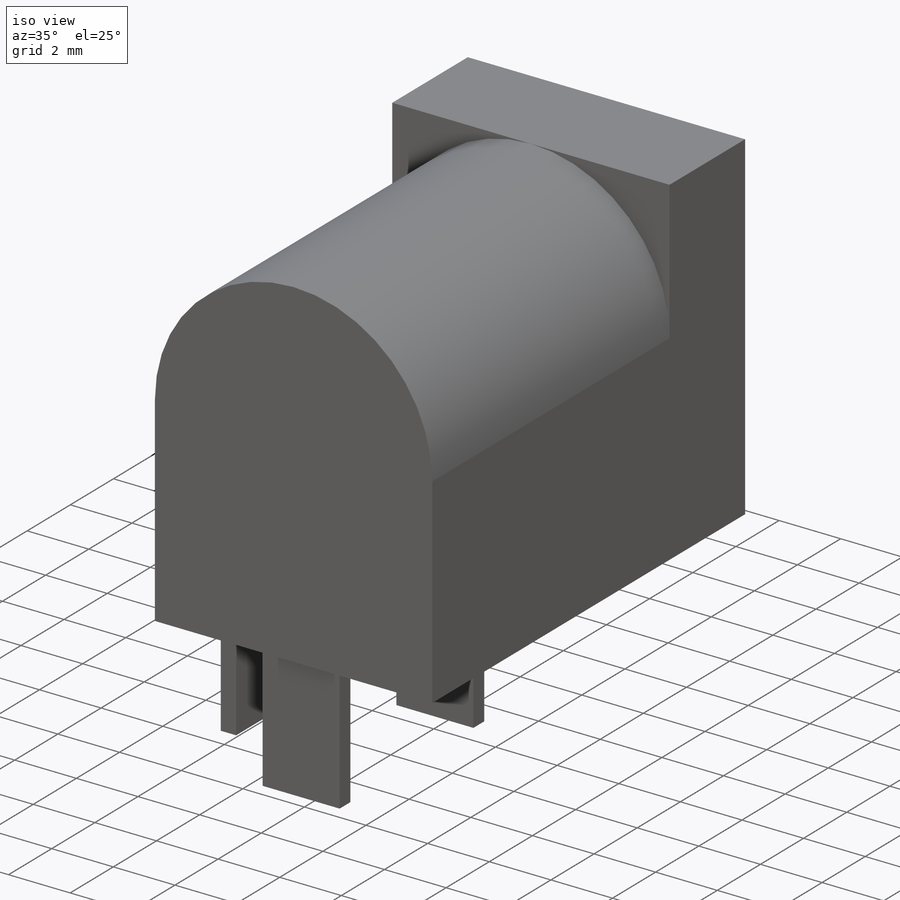
[diagram: iso view]
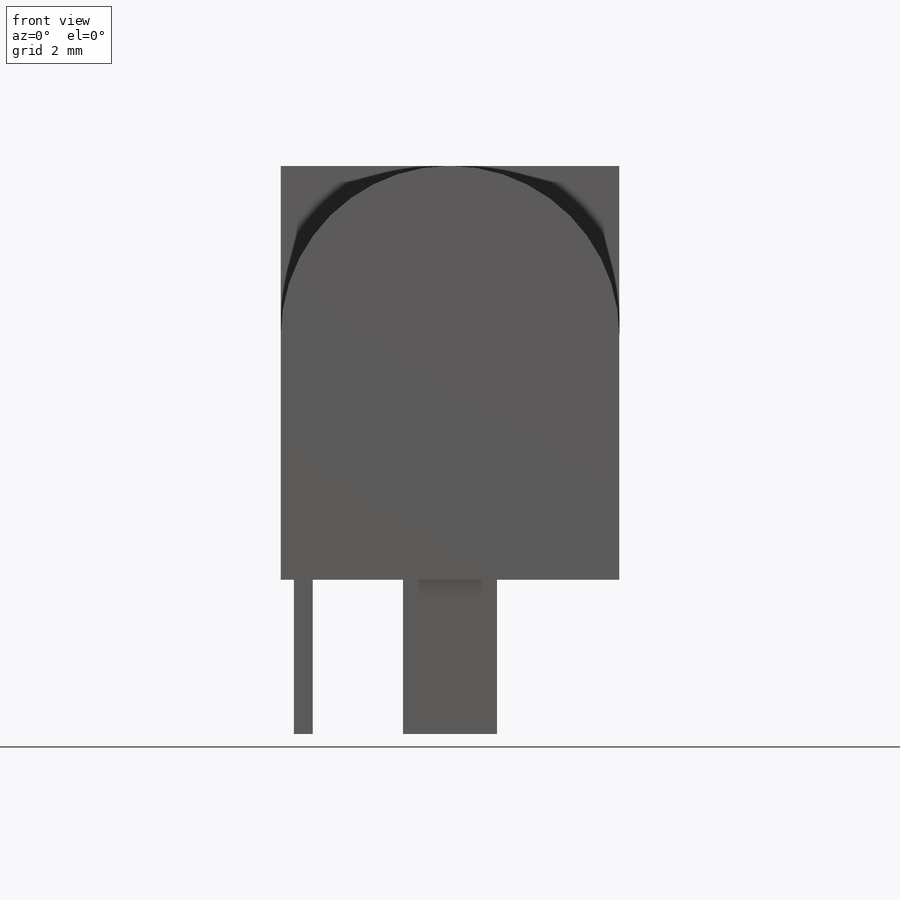
[diagram: front view]
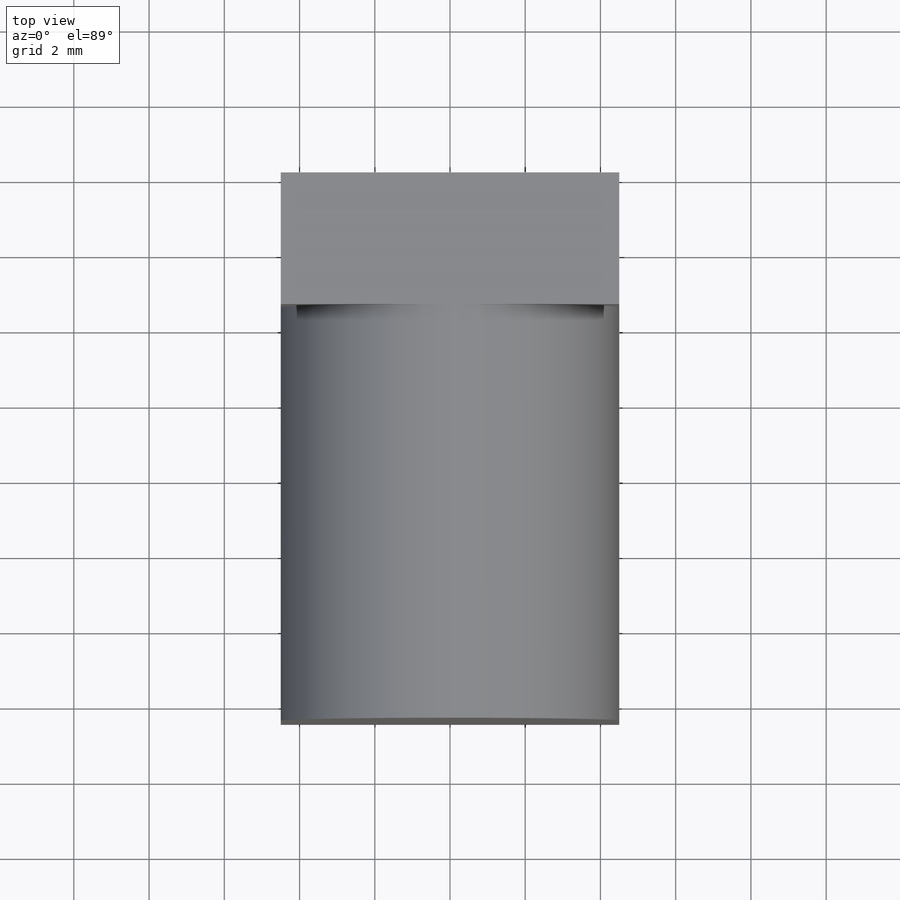
[diagram: top view]
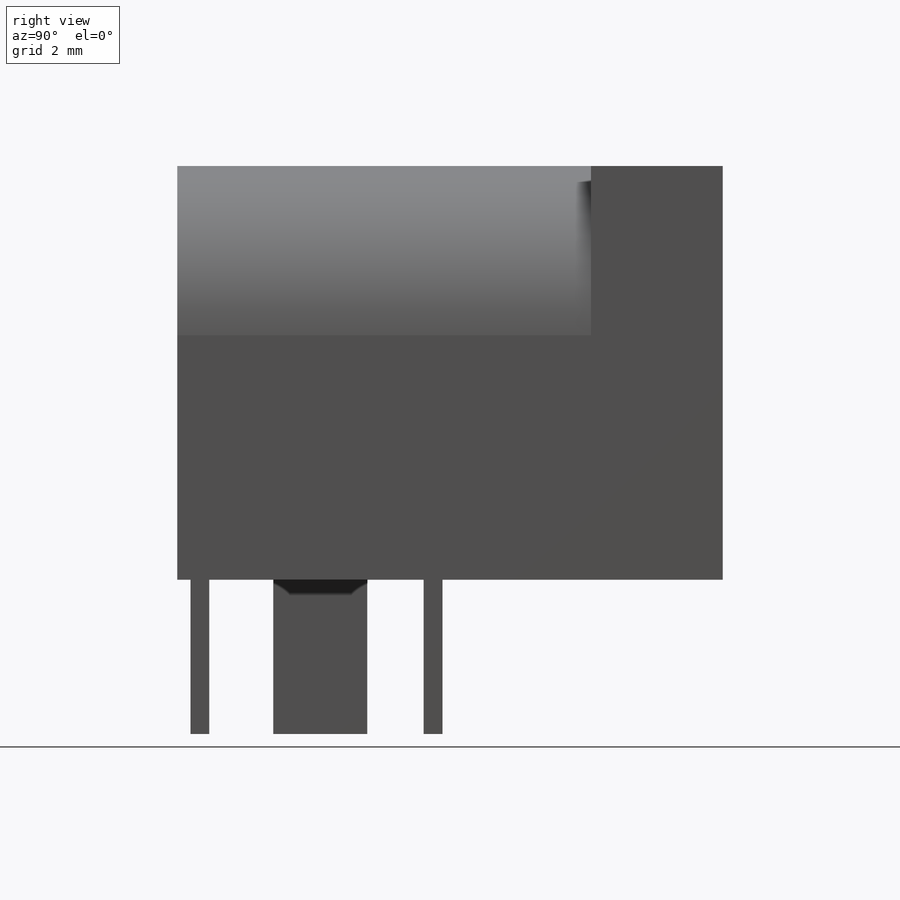
[diagram: right view]
SOLIDWORKS PART (.sldprt)
format: sldprt  version: not decoded by parser v0  size: 136,704 bytes
history: native  units: mm
features: sketch x4, extrude x2, cut_extrude x2, material x1 (+15 scaffold rows collapsed)
feature tree (24):
  scaffold x15  (default folders/planes/origin — collapsed)
  material  "Material <not specified>"
  sketch  "Sketch1"  dims[D1=9.0mm D2=11.0mm]
  extrude  "Extrude1"  Depth=14.5mm
  sketch  "Sketch2"  dims[D1=2.5mm D2=0.5mm D3=13.9mm D4=2.5mm D5=0.5mm D6=7.7mm D7=0.5mm D8=2.5mm D9=10.7mm D10=0.35mm]
  extrude  "Extrude2"  Depth=4.1mm
  sketch  "Sketch3"
  cut_extrude  "Cut-Extrude1"  Depth=11mm
  sketch  "Sketch4"  dims[D1=4.2mm]
  cut_extrude  "Cut-Extrude2"  Depth=10mm
decode coverage: 7 of 8 modeling features carry decoded parameters
note: suppression state not decoded; provenance and decode notes live in map.json
